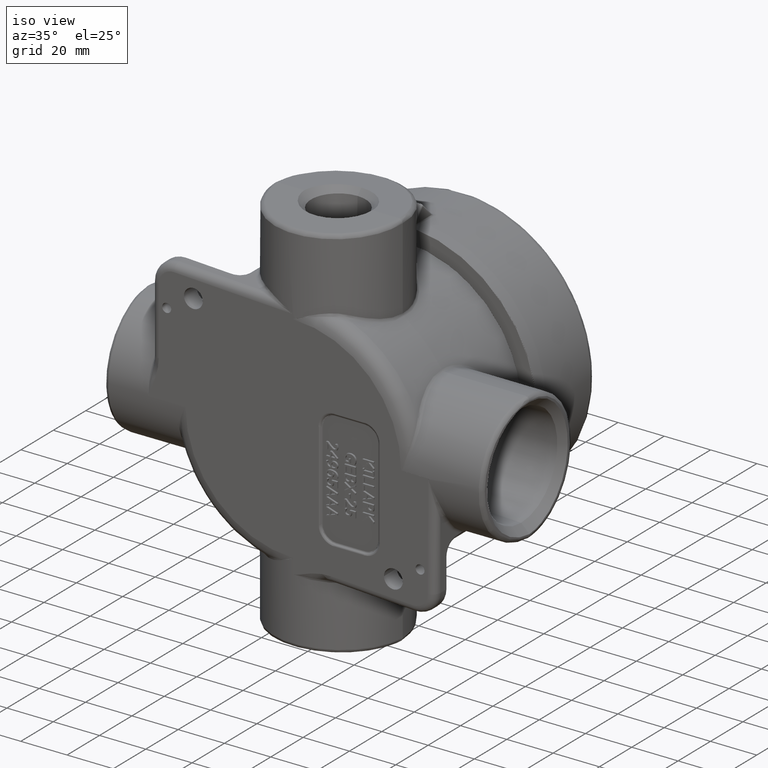
[diagram: clean part render]
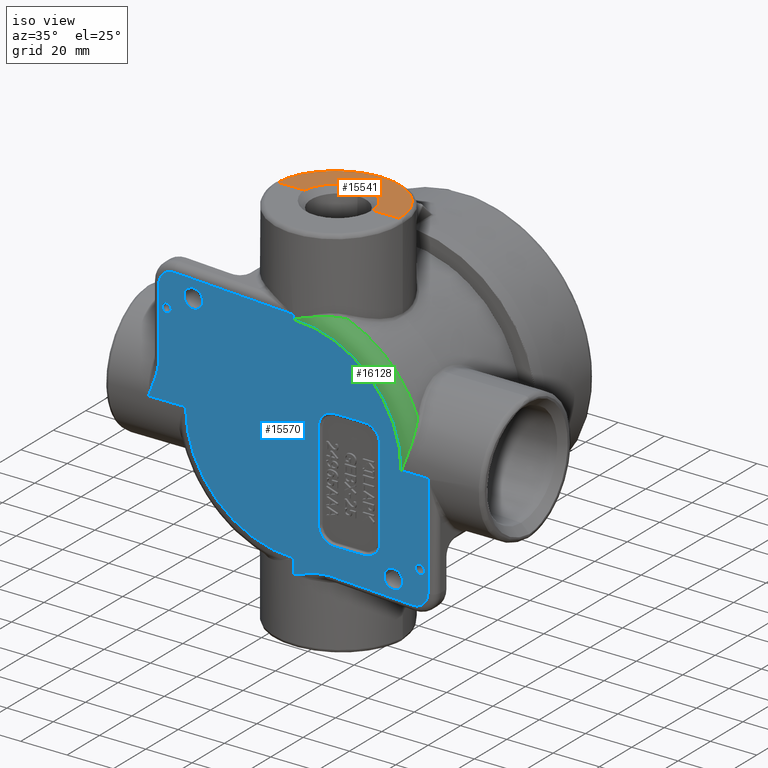
[diagram: same view with three faces highlighted in distinct colors, each labeled with its STEP entity id]
A machine part, iso view with three faces highlighted in distinct colors.
Their STEP definitions:

[orange] entity #15541 — the highlighted planar face has unit normal (0, -0.0349, -0.9994).
#269=PLANE('',#16722);
#944=LINE('',#53354,#2263);
#945=LINE('',#53357,#2264);
#2263=VECTOR('',#18548,0.393700787401575);
#2264=VECTOR('',#18551,0.393700787401575);
#3607=FACE_OUTER_BOUND('',#4546,.T.);
#4546=EDGE_LOOP('',(#11613,#11614,#11615,#11616,#11617));
#5919=ELLIPSE('',#16717,0.580561202167076,0.579853662066667);
#5920=ELLIPSE('',#16720,0.580561202167076,0.579853662066667);
#5921=ELLIPSE('',#16723,1.03212874494423,1.0315);
#6853=VERTEX_POINT('',#53339);
#6854=VERTEX_POINT('',#53340);
#6855=VERTEX_POINT('',#53342);
#6858=VERTEX_POINT('',#53353);
#6859=VERTEX_POINT('',#53355);
#8636=EDGE_CURVE('',#6855,#6853,#5919,.T.);
#8640=EDGE_CURVE('',#6854,#6855,#5920,.T.);
#8642=EDGE_CURVE('',#6853,#6858,#944,.T.);
#8643=EDGE_CURVE('',#6859,#6858,#5921,.T.);
#8644=EDGE_CURVE('',#6859,#6854,#945,.T.);
#11613=ORIENTED_EDGE('',*,*,#8640,.T.);
#11614=ORIENTED_EDGE('',*,*,#8636,.T.);
#11615=ORIENTED_EDGE('',*,*,#8642,.T.);
#11616=ORIENTED_EDGE('',*,*,#8643,.F.);
#11617=ORIENTED_EDGE('',*,*,#8644,.T.);
#15541=ADVANCED_FACE('',(#3607),#269,.F.);
#16717=AXIS2_PLACEMENT_3D('',#53343,#18534,#18535);
#16720=AXIS2_PLACEMENT_3D('',#53349,#18541,#18542);
#16722=AXIS2_PLACEMENT_3D('',#53352,#18546,#18547);
#16723=AXIS2_PLACEMENT_3D('',#53356,#18549,#18550);
#18534=DIRECTION('center_axis',(1.83585116610924E-16,-0.034899496702501,
-0.999390827019096));
#18535=DIRECTION('ref_axis',(1.88845329121022E-13,0.999390827019096,-0.0348994967025009));
#18541=DIRECTION('center_axis',(1.83585116610924E-16,-0.034899496702501,
-0.999390827019096));
#18542=DIRECTION('ref_axis',(1.88845329121022E-13,0.999390827019096,-0.0348994967025009));
#18546=DIRECTION('center_axis',(1.83585116610924E-16,-0.034899496702501,
-0.999390827019096));
#18547=DIRECTION('ref_axis',(-1.,0.,-1.83697019872103E-16));
#18548=DIRECTION('',(1.,0.,1.83697019872103E-16));
#18549=DIRECTION('center_axis',(1.83585116610924E-16,-0.034899496702501,
-0.999390827019096));
#18550=DIRECTION('ref_axis',(6.41093353928571E-18,0.999390827019096,-0.034899496702501));
#18551=DIRECTION('',(1.,0.,1.83697019872103E-16));
#53339=CARTESIAN_POINT('',(0.5795,-2.4056,3.25));
#53340=CARTESIAN_POINT('',(-0.5795,-2.4056,3.25));
#53342=CARTESIAN_POINT('',(6.85736378113264E-17,-1.84565375379168,3.23044624620839));
#53343=CARTESIAN_POINT('Origin',(2.62257407391769E-16,-2.42586129376063,
3.25070753996902));
#53349=CARTESIAN_POINT('Origin',(2.62257407391769E-16,-2.42586129376063,
3.25070753996902));
#53352=CARTESIAN_POINT('Origin',(-6.12073770707609E-16,-2.4056,3.25));
#53353=CARTESIAN_POINT('',(1.03149769378592,-2.4056,3.25));
#53354=CARTESIAN_POINT('',(-5.97015314584335E-16,-2.4056,3.25));
#53355=CARTESIAN_POINT('',(-1.03149769378592,-2.4056,3.25));
#53356=CARTESIAN_POINT('Origin',(-5.97001322413563E-16,-2.40341878145609,
3.24992383017002));
#53357=CARTESIAN_POINT('',(-5.97015314584335E-16,-2.4056,3.25));

[blue] entity #15570 — the highlighted planar face has unit normal (0, -1, 0).
#79=FACE_BOUND('',#4578,.T.);
#80=FACE_BOUND('',#4579,.T.);
#81=FACE_BOUND('',#4580,.T.);
#82=FACE_BOUND('',#4581,.T.);
#83=FACE_BOUND('',#4582,.T.);
#277=PLANE('',#16781);
#875=LINE('',#27950,#2194);
#961=LINE('',#53455,#2280);
#962=LINE('',#53550,#2281);
#964=LINE('',#53628,#2283);
#966=LINE('',#53639,#2285);
#970=LINE('',#53648,#2289);
#974=LINE('',#53687,#2293);
#975=LINE('',#53690,#2294);
#976=LINE('',#53694,#2295);
#977=LINE('',#53703,#2296);
#978=LINE('',#53712,#2297);
#979=LINE('',#53721,#2298);
#2194=VECTOR('',#18025,0.393700787401575);
#2280=VECTOR('',#18645,0.393700787401575);
#2281=VECTOR('',#18648,0.393700787401575);
#2283=VECTOR('',#18658,0.393700787401575);
#2285=VECTOR('',#18672,0.393700787401575);
#2289=VECTOR('',#18684,0.393700787401575);
#2293=VECTOR('',#18696,0.393700787401575);
#2294=VECTOR('',#18699,0.393700787401575);
#2295=VECTOR('',#18702,0.03);
#2296=VECTOR('',#18703,0.03);
#2297=VECTOR('',#18704,0.03);
#2298=VECTOR('',#18705,0.03);
#3636=FACE_OUTER_BOUND('',#4577,.T.);
#4577=EDGE_LOOP('',(#11755,#11756,#11757,#11758,#11759,#11760,#11761,#11762,
#11763,#11764,#11765,#11766,#11767,#11768));
#4578=EDGE_LOOP('',(#11769));
#4579=EDGE_LOOP('',(#11770));
#4580=EDGE_LOOP('',(#11771));
#4581=EDGE_LOOP('',(#11772));
#4582=EDGE_LOOP('',(#11773,#11774,#11775,#11776,#11777,#11778,#11779,#11780));
#5461=B_SPLINE_CURVE_WITH_KNOTS('',3,(#53508,#53509,#53510,#53511,#53512,
#53513,#53514,#53515,#53516,#53517,#53518,#53519,#53520,#53521,#53522,#53523,
#53524,#53525,#53526,#53527,#53528,#53529,#53530,#53531,#53532,#53533,#53534,
#53535,#53536,#53537,#53538,#53539,#53540,#53541,#53542,#53543,#53544,#53545,
#53546,#53547),.UNSPECIFIED.,.F.,.F.,(4,3,3,3,3,3,3,3,3,3,3,3,3,4),(-7.52382636163822,
-7.52270336475169,-7.4901598724304,-7.4851643232038,-7.42719024643873,-7.40592091939132,
-7.33260803382576,-7.28734707659577,-7.0505924438356,-6.81376986986892,
-6.55315721245906,-6.33984558769512,-5.93540632612028,-5.86649127861333),
 .UNSPECIFIED.);
#5464=B_SPLINE_CURVE_WITH_KNOTS('',3,(#53615,#53616,#53617,#53618,#53619,
#53620,#53621,#53622,#53623),.UNSPECIFIED.,.F.,.F.,(4,1,1,1,1,1,4),(0.,
0.474965955560619,0.949931911121239,1.18741488890155,1.42489786668186,1.54363935557201,
1.66238084446217),.UNSPECIFIED.);
#5468=B_SPLINE_CURVE_WITH_KNOTS('',3,(#53696,#53697,#53698,#53699,#53700,
#53701),.UNSPECIFIED.,.F.,.F.,(4,1,1,4),(3.24317808392021,3.70697870941734,
4.01617912641542,4.32537954341351),.UNSPECIFIED.);
#5469=B_SPLINE_CURVE_WITH_KNOTS('',3,(#53705,#53706,#53707,#53708,#53709,
#53710),.UNSPECIFIED.,.F.,.F.,(4,1,1,4),(3.24317808392021,3.5523785009183,
3.86157891791639,4.32537954341351),.UNSPECIFIED.);
#5470=B_SPLINE_CURVE_WITH_KNOTS('',3,(#53714,#53715,#53716,#53717,#53718,
#53719),.UNSPECIFIED.,.F.,.F.,(4,1,1,4),(0.,0.308877060919509,0.617754121839018,
1.08106971321828),.UNSPECIFIED.);
#5471=B_SPLINE_CURVE_WITH_KNOTS('',3,(#53722,#53723,#53724,#53725,#53726,
#53727),.UNSPECIFIED.,.F.,.F.,(4,1,1,4),(0.,0.308877060919509,0.617754121839017,
1.08106971321828),.UNSPECIFIED.);
#6178=CIRCLE('',#16734,0.1605);
#6179=CIRCLE('',#16736,0.0765);
#6191=CIRCLE('',#16755,0.1605);
#6192=CIRCLE('',#16757,0.0765);
#6194=CIRCLE('',#16760,0.245);
#6200=CIRCLE('',#16770,0.245);
#6204=CIRCLE('',#16782,1.83400540308935);
#6205=CIRCLE('',#16783,1.83400540308935);
#6732=VERTEX_POINT('',#27947);
#6733=VERTEX_POINT('',#27949);
#6864=VERTEX_POINT('',#53376);
#6865=VERTEX_POINT('',#53380);
#6880=VERTEX_POINT('',#53441);
#6881=VERTEX_POINT('',#53445);
#6882=VERTEX_POINT('',#53449);
#6883=VERTEX_POINT('',#53453);
#6884=VERTEX_POINT('',#53501);
#6885=VERTEX_POINT('',#53549);
#6888=VERTEX_POINT('',#53606);
#6889=VERTEX_POINT('',#53613);
#6891=VERTEX_POINT('',#53626);
#6893=VERTEX_POINT('',#53632);
#6894=VERTEX_POINT('',#53637);
#6895=VERTEX_POINT('',#53647);
#6902=VERTEX_POINT('',#53686);
#6903=VERTEX_POINT('',#53689);
#6904=VERTEX_POINT('',#53692);
#6905=VERTEX_POINT('',#53693);
#6906=VERTEX_POINT('',#53695);
#6907=VERTEX_POINT('',#53702);
#6908=VERTEX_POINT('',#53704);
#6909=VERTEX_POINT('',#53711);
#6910=VERTEX_POINT('',#53713);
#6911=VERTEX_POINT('',#53720);
#8381=EDGE_CURVE('',#6732,#6733,#875,.T.);
#8654=EDGE_CURVE('',#6864,#6864,#6178,.T.);
#8656=EDGE_CURVE('',#6865,#6865,#6179,.T.);
#8678=EDGE_CURVE('',#6880,#6880,#6191,.T.);
#8680=EDGE_CURVE('',#6881,#6881,#6192,.T.);
#8682=EDGE_CURVE('',#6882,#6732,#6194,.T.);
#8684=EDGE_CURVE('',#6883,#6882,#961,.T.);
#8686=EDGE_CURVE('',#6884,#6883,#5461,.T.);
#8687=EDGE_CURVE('',#6733,#6885,#962,.T.);
#8693=EDGE_CURVE('',#6889,#6888,#5464,.T.);
#8695=EDGE_CURVE('',#6891,#6889,#964,.T.);
#8698=EDGE_CURVE('',#6893,#6891,#6200,.T.);
#8701=EDGE_CURVE('',#6894,#6893,#966,.T.);
#8705=EDGE_CURVE('',#6888,#6895,#970,.T.);
#8714=EDGE_CURVE('',#6902,#6884,#974,.T.);
#8715=EDGE_CURVE('',#6895,#6902,#6204,.T.);
#8716=EDGE_CURVE('',#6903,#6894,#975,.T.);
#8717=EDGE_CURVE('',#6885,#6903,#6205,.T.);
#8718=EDGE_CURVE('',#6904,#6905,#976,.T.);
#8719=EDGE_CURVE('',#6906,#6904,#5468,.T.);
#8720=EDGE_CURVE('',#6907,#6906,#977,.T.);
#8721=EDGE_CURVE('',#6908,#6907,#5469,.T.);
#8722=EDGE_CURVE('',#6909,#6908,#978,.T.);
#8723=EDGE_CURVE('',#6910,#6909,#5470,.T.);
#8724=EDGE_CURVE('',#6911,#6910,#979,.T.);
#8725=EDGE_CURVE('',#6905,#6911,#5471,.T.);
#11755=ORIENTED_EDGE('',*,*,#8686,.F.);
#11756=ORIENTED_EDGE('',*,*,#8714,.F.);
#11757=ORIENTED_EDGE('',*,*,#8715,.F.);
#11758=ORIENTED_EDGE('',*,*,#8705,.F.);
#11759=ORIENTED_EDGE('',*,*,#8693,.F.);
#11760=ORIENTED_EDGE('',*,*,#8695,.F.);
#11761=ORIENTED_EDGE('',*,*,#8698,.F.);
#11762=ORIENTED_EDGE('',*,*,#8701,.F.);
#11763=ORIENTED_EDGE('',*,*,#8716,.F.);
#11764=ORIENTED_EDGE('',*,*,#8717,.F.);
#11765=ORIENTED_EDGE('',*,*,#8687,.F.);
#11766=ORIENTED_EDGE('',*,*,#8381,.F.);
#11767=ORIENTED_EDGE('',*,*,#8682,.F.);
#11768=ORIENTED_EDGE('',*,*,#8684,.F.);
#11769=ORIENTED_EDGE('',*,*,#8654,.T.);
#11770=ORIENTED_EDGE('',*,*,#8656,.T.);
#11771=ORIENTED_EDGE('',*,*,#8678,.T.);
#11772=ORIENTED_EDGE('',*,*,#8680,.T.);
#11773=ORIENTED_EDGE('',*,*,#8718,.F.);
#11774=ORIENTED_EDGE('',*,*,#8719,.F.);
#11775=ORIENTED_EDGE('',*,*,#8720,.F.);
#11776=ORIENTED_EDGE('',*,*,#8721,.F.);
#11777=ORIENTED_EDGE('',*,*,#8722,.F.);
#11778=ORIENTED_EDGE('',*,*,#8723,.F.);
#11779=ORIENTED_EDGE('',*,*,#8724,.F.);
#11780=ORIENTED_EDGE('',*,*,#8725,.F.);
#15570=ADVANCED_FACE('',(#3636,#79,#80,#81,#82,#83),#277,.T.);
#16734=AXIS2_PLACEMENT_3D('',#53378,#18577,#18578);
#16736=AXIS2_PLACEMENT_3D('',#53382,#18582,#18583);
#16755=AXIS2_PLACEMENT_3D('',#53443,#18628,#18629);
#16757=AXIS2_PLACEMENT_3D('',#53447,#18633,#18634);
#16760=AXIS2_PLACEMENT_3D('',#53451,#18639,#18640);
#16770=AXIS2_PLACEMENT_3D('',#53634,#18664,#18665);
#16781=AXIS2_PLACEMENT_3D('',#53685,#18694,#18695);
#16782=AXIS2_PLACEMENT_3D('',#53688,#18697,#18698);
#16783=AXIS2_PLACEMENT_3D('',#53691,#18700,#18701);
#18025=DIRECTION('',(0.998629534754574,0.,-0.0523359562429437));
#18577=DIRECTION('center_axis',(0.,1.,0.));
#18578=DIRECTION('ref_axis',(1.,0.,2.4511461245175E-15));
#18582=DIRECTION('center_axis',(0.,1.,0.));
#18583=DIRECTION('ref_axis',(1.,0.,2.4511461245175E-15));
#18628=DIRECTION('center_axis',(0.,1.,0.));
#18629=DIRECTION('ref_axis',(-1.,0.,-2.32868144460277E-15));
#18633=DIRECTION('center_axis',(0.,1.,0.));
#18634=DIRECTION('ref_axis',(-1.,0.,-2.32868144460277E-15));
#18639=DIRECTION('center_axis',(0.,1.,0.));
#18640=DIRECTION('ref_axis',(-0.688354575693754,0.,0.725374371012287));
#18645=DIRECTION('',(-1.22464679914735E-16,0.,1.));
#18648=DIRECTION('',(1.22464679914735E-16,0.,-1.));
#18658=DIRECTION('',(-0.998629534754574,0.,0.0523359562429438));
#18664=DIRECTION('center_axis',(0.,1.,0.));
#18665=DIRECTION('ref_axis',(0.688354575693755,0.,-0.725374371012286));
#18672=DIRECTION('',(0.,0.,-1.));
#18684=DIRECTION('',(0.,0.,1.));
#18694=DIRECTION('center_axis',(0.,-1.,0.));
#18695=DIRECTION('ref_axis',(0.,0.,-1.));
#18696=DIRECTION('',(-1.,0.,-1.22464679914735E-16));
#18697=DIRECTION('center_axis',(0.,1.,0.));
#18698=DIRECTION('ref_axis',(-0.707106781186547,0.,-0.707106781186548));
#18699=DIRECTION('',(1.,0.,0.));
#18700=DIRECTION('center_axis',(0.,1.,0.));
#18701=DIRECTION('ref_axis',(0.707106781186547,0.,0.707106781186548));
#18702=DIRECTION('',(-1.,0.,0.));
#18703=DIRECTION('',(0.,0.,1.));
#18704=DIRECTION('',(1.,0.,0.));
#18705=DIRECTION('',(0.,0.,-1.));
#27947=CARTESIAN_POINT('',(-2.03117769072048,-3.5,2.01704317672195));
#27949=CARTESIAN_POINT('',(-2.33980241585058E-16,-3.5,1.91059366462203));
#27950=CARTESIAN_POINT('',(-0.483053028328208,-3.5,1.93590940111266));
#53376=CARTESIAN_POINT('',(1.54079891553482,-3.5,-1.70129891553485));
#53378=CARTESIAN_POINT('Origin',(1.70129891553482,-3.5,-1.70129891553485));
#53380=CARTESIAN_POINT('',(2.07879891553482,-3.5,-1.43429891553485));
#53382=CARTESIAN_POINT('Origin',(2.15529891553482,-3.5,-1.43429891553485));
#53441=CARTESIAN_POINT('',(-1.54079891553482,-3.5,1.70129891553485));
#53443=CARTESIAN_POINT('Origin',(-1.70129891553482,-3.5,1.70129891553485));
#53445=CARTESIAN_POINT('',(-2.07879891553482,-3.5,1.43429891553485));
#53447=CARTESIAN_POINT('Origin',(-2.15529891553482,-3.5,1.43429891553485));
#53449=CARTESIAN_POINT('',(-2.289,-3.5,1.77237894070708));
#53451=CARTESIAN_POINT('Origin',(-2.044,-3.5,1.77237894070708));
#53453=CARTESIAN_POINT('',(-2.289,-3.5,0.626082774080235));
#53455=CARTESIAN_POINT('',(-2.289,-3.5,1.06111134661056));
#53501=CARTESIAN_POINT('',(-2.46184105267714,-3.5,-2.3804533162684E-16));
#53508=CARTESIAN_POINT('Ctrl Pts',(-2.46184105267714,-3.5,-7.91493208661073E-16));
#53509=CARTESIAN_POINT('Ctrl Pts',(-2.46184105267714,-3.5,0.000147392388381712));
#53510=CARTESIAN_POINT('Ctrl Pts',(-2.46184057427306,-3.5,0.0002947767540192));
#53511=CARTESIAN_POINT('Ctrl Pts',(-2.46183962079439,-3.5,0.000442148832454196));
#53512=CARTESIAN_POINT('Ctrl Pts',(-2.46181198979545,-3.5,0.0047128660182859));
#53513=CARTESIAN_POINT('Ctrl Pts',(-2.461381285619,-3.5,0.00898151841948492));
#53514=CARTESIAN_POINT('Ctrl Pts',(-2.46065073731899,-3.5,0.0131974589962739));
#53515=CARTESIAN_POINT('Ctrl Pts',(-2.46053859539031,-3.5,0.0138446218293178));
#53516=CARTESIAN_POINT('Ctrl Pts',(-2.46041947979985,-3.5,0.0144905012373863));
#53517=CARTESIAN_POINT('Ctrl Pts',(-2.46029385792822,-3.5,0.0151348772756808));
#53518=CARTESIAN_POINT('Ctrl Pts',(-2.45883599780135,-3.5,0.0226129551035813));
#53519=CARTESIAN_POINT('Ctrl Pts',(-2.45650630822202,-3.49999999955303,
0.0299016829894829));
#53520=CARTESIAN_POINT('Ctrl Pts',(-2.45391962846632,-3.49999999706645,
0.0370961659492531));
#53521=CARTESIAN_POINT('Ctrl Pts',(-2.4529706364209,-3.49999999615418,0.0397356527603749));
#53522=CARTESIAN_POINT('Ctrl Pts',(-2.45198646888581,-3.49999999500021,
0.0423623716384486));
#53523=CARTESIAN_POINT('Ctrl Pts',(-2.45099596587336,-3.49999999368958,
0.0449807856086832));
#53524=CARTESIAN_POINT('Ctrl Pts',(-2.44758181770391,-3.49999998917199,
0.0540061526706131));
#53525=CARTESIAN_POINT('Ctrl Pts',(-2.44409275336193,-3.49999998220344,
0.0629332280016152));
#53526=CARTESIAN_POINT('Ctrl Pts',(-2.44052995475808,-3.4999999815746,0.0718705811671446));
#53527=CARTESIAN_POINT('Ctrl Pts',(-2.43833040042347,-3.49999998118638,
0.0773882082016523));
#53528=CARTESIAN_POINT('Ctrl Pts',(-2.43611117750612,-3.49999998101191,
0.0828933475151383));
#53529=CARTESIAN_POINT('Ctrl Pts',(-2.43388007512818,-3.49999998093485,
0.0883973976902872));
#53530=CARTESIAN_POINT('Ctrl Pts',(-2.42220944647892,-3.49999998053177,
0.117188423281933));
#53531=CARTESIAN_POINT('Ctrl Pts',(-2.41021384546228,-3.49999998301384,
0.145949726907879));
#53532=CARTESIAN_POINT('Ctrl Pts',(-2.39866579307499,-3.49999998594383,
0.174837889881108));
#53533=CARTESIAN_POINT('Ctrl Pts',(-2.3871144267563,-3.49999998887467,0.203734342857464));
#53534=CARTESIAN_POINT('Ctrl Pts',(-2.37601095500899,-3.49999999239472,
0.232757758247387));
#53535=CARTESIAN_POINT('Ctrl Pts',(-2.3654928919002,-3.49999999311806,0.261997828968331));
#53536=CARTESIAN_POINT('Ctrl Pts',(-2.35391823357404,-3.49999999391405,
0.294175219855527));
#53537=CARTESIAN_POINT('Ctrl Pts',(-2.3430527574909,-3.49999999084647,0.326615010169787));
#53538=CARTESIAN_POINT('Ctrl Pts',(-2.33331771283736,-3.49999998384522,
0.359401030706318));
#53539=CARTESIAN_POINT('Ctrl Pts',(-2.32534957263713,-3.4999999781147,0.386236409232053));
#53540=CARTESIAN_POINT('Ctrl Pts',(-2.31812377576492,-3.49999997585543,
0.413341839730294));
#53541=CARTESIAN_POINT('Ctrl Pts',(-2.31187893253782,-3.49999997669135,
0.440757547952692));
#53542=CARTESIAN_POINT('Ctrl Pts',(-2.30003869745352,-3.49999997827627,
0.492737784853931));
#53543=CARTESIAN_POINT('Ctrl Pts',(-2.29172756131622,-3.49999999677177,
0.54583469647754));
#53544=CARTESIAN_POINT('Ctrl Pts',(-2.28956031247206,-3.49999999949184,
0.598940493325825));
#53545=CARTESIAN_POINT('Ctrl Pts',(-2.28919102078541,-3.49999999995533,
0.607989536928671));
#53546=CARTESIAN_POINT('Ctrl Pts',(-2.289,-3.5,0.617038804591134));
#53547=CARTESIAN_POINT('Ctrl Pts',(-2.289,-3.5,0.626082774080234));
#53549=CARTESIAN_POINT('',(0.,-3.5,1.83400540308935));
#53550=CARTESIAN_POINT('',(0.,-3.5,6.49743307082779E-17));
#53606=CARTESIAN_POINT('',(-1.44659035406559E-9,-3.5,-2.08366873991912));
#53613=CARTESIAN_POINT('',(0.635764925985179,-3.5,-1.94391269253896));
#53615=CARTESIAN_POINT('Ctrl Pts',(0.635764925985179,-3.5,-1.94391269253896));
#53616=CARTESIAN_POINT('Ctrl Pts',(0.573518858895184,-3.5,-1.94065051439367));
#53617=CARTESIAN_POINT('Ctrl Pts',(0.448062214297264,-3.5,-1.95213140452949));
#53618=CARTESIAN_POINT('Ctrl Pts',(0.297182296382502,-3.5,-1.99103918843033));
#53619=CARTESIAN_POINT('Ctrl Pts',(0.178046889123745,-3.5,-2.02953804377728));
#53620=CARTESIAN_POINT('Ctrl Pts',(0.104204504550624,-3.5,-2.05583581326223));
#53621=CARTESIAN_POINT('Ctrl Pts',(0.045918742563783,-3.5,-2.07560378988632));
#53622=CARTESIAN_POINT('Ctrl Pts',(0.0155529301126808,-3.5,-2.08463905083499));
#53623=CARTESIAN_POINT('Ctrl Pts',(-1.4522000400097E-9,-3.5,-2.08366874000904));
#53626=CARTESIAN_POINT('',(2.03117769072048,-3.5,-2.01704317672195));
#53628=CARTESIAN_POINT('',(-0.575151878791027,-3.5,-1.88045123190412));
#53632=CARTESIAN_POINT('',(2.289,-3.5,-1.77237894070708));
#53634=CARTESIAN_POINT('Origin',(2.044,-3.5,-1.77237894070708));
#53637=CARTESIAN_POINT('',(2.289,-3.5,0.));
#53639=CARTESIAN_POINT('',(2.289,-3.5,-1.06111134661056));
#53647=CARTESIAN_POINT('',(0.,-3.5,-1.83400540308935));
#53648=CARTESIAN_POINT('',(0.,-3.5,0.));
#53685=CARTESIAN_POINT('Origin',(-1.06111134661056,-3.5,0.));
#53686=CARTESIAN_POINT('',(-1.83400540308935,-3.5,0.));
#53687=CARTESIAN_POINT('',(-1.73755567330528,-3.5,-2.12789199365363E-16));
#53688=CARTESIAN_POINT('Origin',(0.,-3.5,0.));
#53689=CARTESIAN_POINT('',(1.83400540308935,-3.5,-1.74838271594513E-16));
#53690=CARTESIAN_POINT('',(0.676444326694721,-3.5,0.));
#53691=CARTESIAN_POINT('Origin',(0.,-3.5,0.));
#53692=CARTESIAN_POINT('',(1.2,-3.5,0.572663436082351));
#53693=CARTESIAN_POINT('',(0.699999999999999,-3.5,0.572663436082351));
#53694=CARTESIAN_POINT('',(1.075,-3.5,0.572663436082351));
#53695=CARTESIAN_POINT('',(1.47266343608235,-3.5,0.3));
#53696=CARTESIAN_POINT('Ctrl Pts',(1.47266343608235,-3.5,0.299999999999999));
#53697=CARTESIAN_POINT('Ctrl Pts',(1.47266343608235,-3.5,0.361072596809883));
#53698=CARTESIAN_POINT('Ctrl Pts',(1.43674976152981,-3.5,0.463125781663815));
#53699=CARTESIAN_POINT('Ctrl Pts',(1.32163357289778,-3.5,0.554209187965557));
#53700=CARTESIAN_POINT('Ctrl Pts',(1.24057748254568,-3.5,0.572663436082352));
#53701=CARTESIAN_POINT('Ctrl Pts',(1.2,-3.5,0.572663436082352));
#53702=CARTESIAN_POINT('',(1.47266343608235,-3.5,-1.2));
#53703=CARTESIAN_POINT('',(1.47266343608235,-3.5,-0.825));
#53704=CARTESIAN_POINT('',(1.2,-3.5,-1.47266343608235));
#53705=CARTESIAN_POINT('Ctrl Pts',(1.2,-3.5,-1.47266343608235));
#53706=CARTESIAN_POINT('Ctrl Pts',(1.24071506453992,-3.5,-1.47266343608235));
#53707=CARTESIAN_POINT('Ctrl Pts',(1.32222636306764,-3.5,-1.45400451517902));
#53708=CARTESIAN_POINT('Ctrl Pts',(1.43712720243739,-3.5,-1.36231404063705));
#53709=CARTESIAN_POINT('Ctrl Pts',(1.47266343608235,-3.5,-1.26086622381852));
#53710=CARTESIAN_POINT('Ctrl Pts',(1.47266343608235,-3.5,-1.2));
#53711=CARTESIAN_POINT('',(0.699999999999999,-3.5,-1.47266343608235));
#53712=CARTESIAN_POINT('',(0.824999999999999,-3.5,-1.47266343608235));
#53713=CARTESIAN_POINT('',(0.427336563917647,-3.5,-1.2));
#53714=CARTESIAN_POINT('Ctrl Pts',(0.427336563917647,-3.5,-1.2));
#53715=CARTESIAN_POINT('Ctrl Pts',(0.427336563917647,-3.5,-1.24053504736476));
#53716=CARTESIAN_POINT('Ctrl Pts',(0.446121016392741,-3.5,-1.32221794458679));
#53717=CARTESIAN_POINT('Ctrl Pts',(0.537096261118162,-3.5,-1.43674958366154));
#53718=CARTESIAN_POINT('Ctrl Pts',(0.639124460561121,-3.5,-1.47266343608235));
#53719=CARTESIAN_POINT('Ctrl Pts',(0.699999999999999,-3.5,-1.47266343608235));
#53720=CARTESIAN_POINT('',(0.427336563917646,-3.5,0.299999999999999));
#53721=CARTESIAN_POINT('',(0.427336563917647,-3.5,-0.0750000000000006));
#53722=CARTESIAN_POINT('Ctrl Pts',(0.699999999999999,-3.5,0.572663436082352));
#53723=CARTESIAN_POINT('Ctrl Pts',(0.659464952635237,-3.5,0.572663436082352));
#53724=CARTESIAN_POINT('Ctrl Pts',(0.577778233370168,-3.5,0.553880653077662));
#53725=CARTESIAN_POINT('Ctrl Pts',(0.46324480955094,-3.5,0.462905897644179));
#53726=CARTESIAN_POINT('Ctrl Pts',(0.427336563917646,-3.5,0.360875539438879));
#53727=CARTESIAN_POINT('Ctrl Pts',(0.427336563917646,-3.5,0.299999999999999));

[green] entity #16128 — the highlighted toroidal blend (fillet) surface has major radius 46.5837 mm and minor (blend) radius 6.35 mm.
#187=TOROIDAL_SURFACE('',#17178,1.83400540308935,0.25);
#4194=FACE_OUTER_BOUND('',#5171,.T.);
#5171=EDGE_LOOP('',(#14642,#14643,#14644,#14645,#14646,#14647));
#5830=B_SPLINE_CURVE_WITH_KNOTS('',3,(#59869,#59870,#59871,#59872,#59873,
#59874,#59875,#59876,#59877,#59878,#59879),.UNSPECIFIED.,.F.,.F.,(4,1,1,
1,1,1,1,1,4),(-17.609762515148,-17.5306322365072,-17.4515019578663,-17.2932414005846,
-16.9767202860212,-16.6601991714578,-16.027156942331,-15.8688963850493,
-15.3941147132042),.UNSPECIFIED.);
#5841=B_SPLINE_CURVE_WITH_KNOTS('',3,(#60173,#60174,#60175,#60176,#60177,
#60178,#60179,#60180,#60181,#60182),.UNSPECIFIED.,.F.,.F.,(4,1,1,1,1,1,
1,4),(15.3941147132048,15.7106358277682,16.343678056895,16.9767202860218,
17.2932414005852,17.4515019578669,17.5306322365077,17.6097625151486),
 .UNSPECIFIED.);
#6196=CIRCLE('',#16764,0.25);
#6205=CIRCLE('',#16783,1.83400540308935);
#6258=CIRCLE('',#17179,0.25);
#6259=CIRCLE('',#17180,2.08400540308935);
#6885=VERTEX_POINT('',#53549);
#6886=VERTEX_POINT('',#53551);
#6903=VERTEX_POINT('',#53689);
#7722=VERTEX_POINT('',#59805);
#7731=VERTEX_POINT('',#60021);
#7733=VERTEX_POINT('',#60166);
#8688=EDGE_CURVE('',#6885,#6886,#6196,.T.);
#8717=EDGE_CURVE('',#6885,#6903,#6205,.T.);
#10024=EDGE_CURVE('',#6886,#7722,#5830,.T.);
#10048=EDGE_CURVE('',#7731,#7733,#5841,.T.);
#10068=EDGE_CURVE('',#6903,#7733,#6258,.F.);
#10069=EDGE_CURVE('',#7731,#7722,#6259,.T.);
#14642=ORIENTED_EDGE('',*,*,#10024,.F.);
#14643=ORIENTED_EDGE('',*,*,#8688,.F.);
#14644=ORIENTED_EDGE('',*,*,#8717,.T.);
#14645=ORIENTED_EDGE('',*,*,#10068,.T.);
#14646=ORIENTED_EDGE('',*,*,#10048,.F.);
#14647=ORIENTED_EDGE('',*,*,#10069,.T.);
#16128=ADVANCED_FACE('',(#4194),#187,.T.);
#16764=AXIS2_PLACEMENT_3D('',#53552,#18649,#18650);
#16783=AXIS2_PLACEMENT_3D('',#53691,#18700,#18701);
#17178=AXIS2_PLACEMENT_3D('',#60529,#20398,#20399);
#17179=AXIS2_PLACEMENT_3D('',#60530,#20400,#20401);
#17180=AXIS2_PLACEMENT_3D('',#60531,#20402,#20403);
#18649=DIRECTION('center_axis',(-1.,0.,-1.22464679914735E-16));
#18650=DIRECTION('ref_axis',(-1.22464679914735E-16,0.,1.));
#18700=DIRECTION('center_axis',(0.,1.,0.));
#18701=DIRECTION('ref_axis',(0.707106781186547,0.,0.707106781186548));
#20398=DIRECTION('center_axis',(0.,1.,0.));
#20399=DIRECTION('ref_axis',(0.,0.,1.));
#20400=DIRECTION('center_axis',(0.,0.,-1.));
#20401=DIRECTION('ref_axis',(1.,0.,0.));
#20402=DIRECTION('center_axis',(0.,-1.,0.));
#20403=DIRECTION('ref_axis',(0.707106781186547,0.,0.707106781186548));
#53549=CARTESIAN_POINT('',(0.,-3.5,1.83400540308935));
#53551=CARTESIAN_POINT('',(2.55168789643859E-16,-3.49966666666667,1.84691104354442));
#53552=CARTESIAN_POINT('Origin',(-2.24600884651232E-16,-3.25,1.83400540308935));
#53689=CARTESIAN_POINT('',(1.83400540308935,-3.5,-1.74838271594513E-16));
#53691=CARTESIAN_POINT('Origin',(0.,-3.5,0.));
#59805=CARTESIAN_POINT('',(0.753747886975307,-3.25000000000055,1.9429211623187));
#59869=CARTESIAN_POINT('Ctrl Pts',(-6.60448335164674E-16,-3.49966666666667,
1.84691104354442));
#59870=CARTESIAN_POINT('Ctrl Pts',(0.0103720294088183,-3.49966666666667,
1.84691104354442));
#59871=CARTESIAN_POINT('Ctrl Pts',(0.0305798518285296,-3.49943108376039,
1.85160515671143));
#59872=CARTESIAN_POINT('Ctrl Pts',(0.0687436982211125,-3.49815742776602,
1.86470632314638));
#59873=CARTESIAN_POINT('Ctrl Pts',(0.134507076310221,-3.49393795034648,
1.88859548362498));
#59874=CARTESIAN_POINT('Ctrl Pts',(0.22934314451692,-3.48162855356109,1.9198340207621));
#59875=CARTESIAN_POINT('Ctrl Pts',(0.379322722359453,-3.44844066424655,
1.95892902158123));
#59876=CARTESIAN_POINT('Ctrl Pts',(0.509004348519788,-3.39958272839262,
1.9764417598976));
#59877=CARTESIAN_POINT('Ctrl Pts',(0.646050933755511,-3.3269004240242,1.97240195088792));
#59878=CARTESIAN_POINT('Ctrl Pts',(0.710570941486139,-3.28367765940967,
1.95967147214058));
#59879=CARTESIAN_POINT('Ctrl Pts',(0.753747886975586,-3.2500000000007,1.94292116231859));
#60021=CARTESIAN_POINT('',(1.94292116231866,-3.25000000000051,0.753747886975403));
#60166=CARTESIAN_POINT('',(1.84691104354442,-3.49966666666667,8.7673860843566E-16));
#60173=CARTESIAN_POINT('Ctrl Pts',(1.9429211623186,-3.25000000000072,0.753747886975569));
#60174=CARTESIAN_POINT('Ctrl Pts',(1.95408803553326,-3.27245177294003,0.724963256649272));
#60175=CARTESIAN_POINT('Ctrl Pts',(1.978094098519,-3.33844888349121,0.631775904138716));
#60176=CARTESIAN_POINT('Ctrl Pts',(1.97479822511057,-3.42625983866577,0.455121965614338));
#60177=CARTESIAN_POINT('Ctrl Pts',(1.93222905144355,-3.47684519242745,0.266878094035806));
#60178=CARTESIAN_POINT('Ctrl Pts',(1.88862269495251,-3.4939011978062,0.134615518463431));
#60179=CARTESIAN_POINT('Ctrl Pts',(1.8647017637616,-3.49816402331342,0.0687250541081067));
#60180=CARTESIAN_POINT('Ctrl Pts',(1.85160706456278,-3.49942860590638,0.0305872298758663));
#60181=CARTESIAN_POINT('Ctrl Pts',(1.84691104354442,-3.49966666666667,0.0103720294088214));
#60182=CARTESIAN_POINT('Ctrl Pts',(1.84691104354442,-3.49966666666667,2.57054496834691E-16));
#60529=CARTESIAN_POINT('Origin',(0.,-3.25,0.));
#60530=CARTESIAN_POINT('Origin',(1.83400540308935,-3.25,0.));
#60531=CARTESIAN_POINT('Origin',(0.,-3.25,0.));